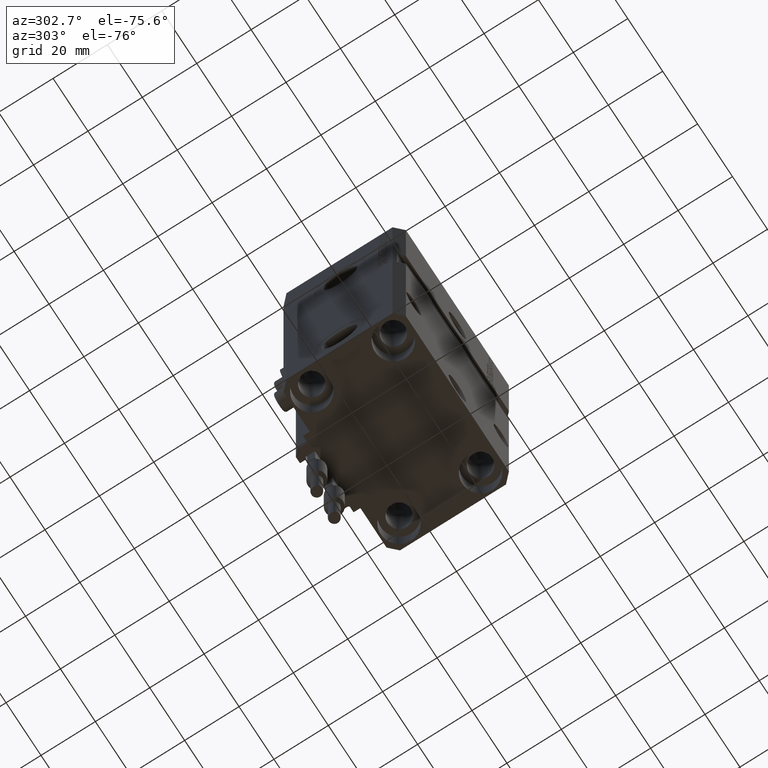
[diagram: clean part render]
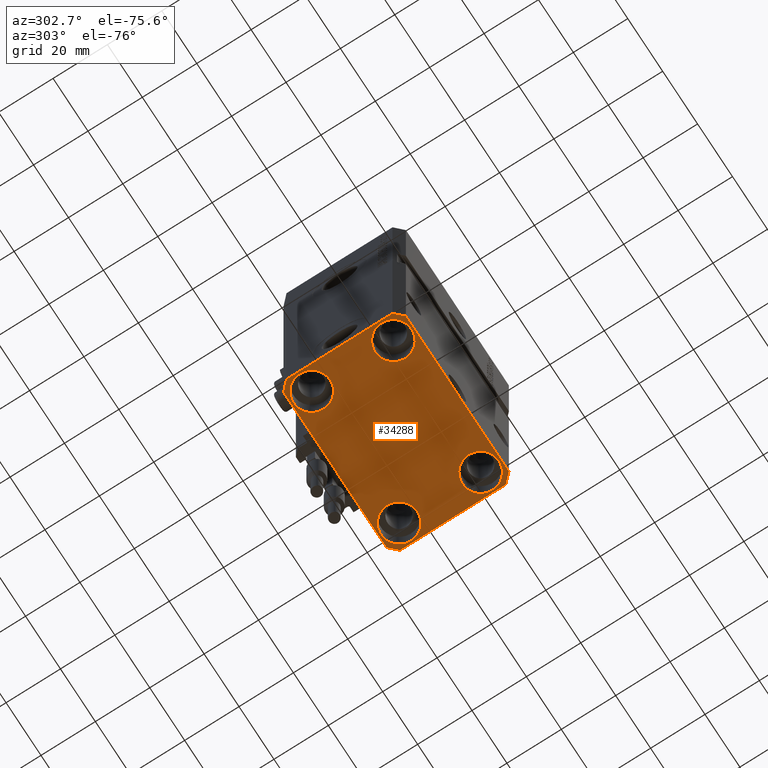
[diagram: same view with one face highlighted and labeled with its STEP entity id]
A machine part, auxiliary view. The second image highlights one B-rep face of the part: STEP entity #34288.
In plain terms, the highlighted planar face has unit normal (0, 0, 1).
Its self-contained STEP definition (entity closure, byte-faithful):
#32 = CARTESIAN_POINT ( 'NONE',  ( 24.99999999999999645, 15.00000000000000888, -107.0000000000000000 ) ) ;
#191 = VERTEX_POINT ( 'NONE', #32069 ) ;
#310 = DIRECTION ( 'NONE',  ( -0.000000000000000000, -0.000000000000000000, 1.000000000000000000 ) ) ;
#604 = CARTESIAN_POINT ( 'NONE',  ( 29.49999999999650413, -22.49999999999949196, -107.0000000000000000 ) ) ;
#1061 = DIRECTION ( 'NONE',  ( 0.000000000000000000, -1.000000000000000000, 0.000000000000000000 ) ) ;
#1066 = CARTESIAN_POINT ( 'NONE',  ( -18.24999999997747224, 15.00000000000000000, -107.0000000000000000 ) ) ;
#1244 = CIRCLE ( 'NONE', #2083, 6.749999999977465137 ) ;
#1299 = FACE_BOUND ( 'NONE', #30832, .T. ) ;
#1635 = CARTESIAN_POINT ( 'NONE',  ( -25.00000000000000355, 15.00000000000000000, -107.0000000000000000 ) ) ;
#1815 = DIRECTION ( 'NONE',  ( 0.000000000000000000, 0.000000000000000000, 1.000000000000000000 ) ) ;
#1820 = EDGE_CURVE ( 'NONE', #12566, #26751, #50322, .T. ) ;
#1847 = LINE ( 'NONE', #17880, #5560 ) ;
#2029 = VERTEX_POINT ( 'NONE', #22838 ) ;
#2083 = AXIS2_PLACEMENT_3D ( 'NONE', #46820, #6704, #50514 ) ;
#3018 = AXIS2_PLACEMENT_3D ( 'NONE', #41444, #5760, #21776 ) ;
#3270 = CARTESIAN_POINT ( 'NONE',  ( 32.49999999999651124, -19.49999999999949196, -107.0000000000000000 ) ) ;
#3643 = CIRCLE ( 'NONE', #16186, 6.749999999977465137 ) ;
#3691 = CARTESIAN_POINT ( 'NONE',  ( 32.49999999999702993, 19.49999999999945999, -107.0000000000000000 ) ) ;
#4186 = CARTESIAN_POINT ( 'NONE',  ( 29.49999999999707967, 22.49999999999951328, -107.0000000000000000 ) ) ;
#4580 = EDGE_LOOP ( 'NONE', ( #19465, #47858, #41402, #41036, #38727, #18479, #20033, #10321 ) ) ;
#4661 = CIRCLE ( 'NONE', #3018, 6.750000000041541881 ) ;
#5006 = DIRECTION ( 'NONE',  ( -0.000000000000000000, -0.000000000000000000, 1.000000000000000000 ) ) ;
#5560 = VECTOR ( 'NONE', #1061, 1000.000000000000000 ) ;
#5760 = DIRECTION ( 'NONE',  ( -0.000000000000000000, -0.000000000000000000, 1.000000000000000000 ) ) ;
#5864 = CARTESIAN_POINT ( 'NONE',  ( -32.49999999999650413, 19.49999999999949907, -107.0000000000000000 ) ) ;
#6010 = ORIENTED_EDGE ( 'NONE', *, *, #40362, .T. ) ;
#6704 = DIRECTION ( 'NONE',  ( -0.000000000000000000, -0.000000000000000000, 1.000000000000000000 ) ) ;
#7234 = VERTEX_POINT ( 'NONE', #11788 ) ;
#7460 = DIRECTION ( 'NONE',  ( 1.334402673828349134E-14, 1.000000000000000000, 0.000000000000000000 ) ) ;
#7964 = CIRCLE ( 'NONE', #37292, 6.750000000041541881 ) ;
#8098 = AXIS2_PLACEMENT_3D ( 'NONE', #44627, #310, #12117 ) ;
#8734 = DIRECTION ( 'NONE',  ( 0.7071067811865483499, 0.7071067811865466846, 0.000000000000000000 ) ) ;
#9169 = FACE_BOUND ( 'NONE', #26980, .T. ) ;
#9777 = DIRECTION ( 'NONE',  ( -0.000000000000000000, -0.000000000000000000, 1.000000000000000000 ) ) ;
#10321 = ORIENTED_EDGE ( 'NONE', *, *, #39813, .F. ) ;
#10545 = AXIS2_PLACEMENT_3D ( 'NONE', #25172, #1815, #49296 ) ;
#11058 = DIRECTION ( 'NONE',  ( -0.000000000000000000, -0.000000000000000000, 1.000000000000000000 ) ) ;
#11730 = DIRECTION ( 'NONE',  ( 1.000000000000000000, 0.000000000000000000, 0.000000000000000000 ) ) ;
#11786 = DIRECTION ( 'NONE',  ( -0.7071067811865474617, -0.7071067811865474617, 0.000000000000000000 ) ) ;
#11788 = CARTESIAN_POINT ( 'NONE',  ( 31.74999999997746869, -15.00000000000000000, -107.0000000000000000 ) ) ;
#11983 = CARTESIAN_POINT ( 'NONE',  ( 29.49999999999707967, 22.49999999999951328, -107.0000000000000000 ) ) ;
#12117 = DIRECTION ( 'NONE',  ( 1.000000000000000000, 0.000000000000000000, 0.000000000000000000 ) ) ;
#12566 = VERTEX_POINT ( 'NONE', #50849 ) ;
#12975 = VERTEX_POINT ( 'NONE', #43423 ) ;
#13620 = FACE_OUTER_BOUND ( 'NONE', #4580, .T. ) ;
#14134 = EDGE_CURVE ( 'NONE', #32474, #15887, #7964, .T. ) ;
#14921 = EDGE_CURVE ( 'NONE', #42387, #2029, #37327, .T. ) ;
#15742 = LINE ( 'NONE', #31720, #22357 ) ;
#15887 = VERTEX_POINT ( 'NONE', #34272 ) ;
#15931 = CARTESIAN_POINT ( 'NONE',  ( -25.00000000000000355, 15.00000000000000000, -107.0000000000000000 ) ) ;
#16001 = VECTOR ( 'NONE', #8734, 1000.000000000000000 ) ;
#16186 = AXIS2_PLACEMENT_3D ( 'NONE', #27572, #11058, #19986 ) ;
#16199 = DIRECTION ( 'NONE',  ( 1.000000000000000000, 1.176083712526788232E-16, 0.000000000000000000 ) ) ;
#16866 = LINE ( 'NONE', #20295, #42410 ) ;
#17527 = EDGE_CURVE ( 'NONE', #7234, #12975, #1244, .T. ) ;
#17880 = CARTESIAN_POINT ( 'NONE',  ( -32.49999999999650413, 19.49999999999949907, -107.0000000000000000 ) ) ;
#18178 = AXIS2_PLACEMENT_3D ( 'NONE', #1635, #9777, #21855 ) ;
#18479 = ORIENTED_EDGE ( 'NONE', *, *, #35173, .F. ) ;
#19132 = LINE ( 'NONE', #39575, #23101 ) ;
#19465 = ORIENTED_EDGE ( 'NONE', *, *, #20929, .F. ) ;
#19521 = CARTESIAN_POINT ( 'NONE',  ( 32.49999999999651124, -19.49999999999949196, -107.0000000000000000 ) ) ;
#19986 = DIRECTION ( 'NONE',  ( 1.000000000000000000, 0.000000000000000000, 0.000000000000000000 ) ) ;
#20033 = ORIENTED_EDGE ( 'NONE', *, *, #38901, .F. ) ;
#20295 = CARTESIAN_POINT ( 'NONE',  ( -32.49999999999650413, -19.49999999999949907, -107.0000000000000000 ) ) ;
#20611 = VERTEX_POINT ( 'NONE', #4186 ) ;
#20929 = EDGE_CURVE ( 'NONE', #20611, #29322, #27728, .T. ) ;
#21776 = DIRECTION ( 'NONE',  ( 1.000000000000000000, 0.000000000000000000, 0.000000000000000000 ) ) ;
#21855 = DIRECTION ( 'NONE',  ( 1.000000000000000000, 0.000000000000000000, 0.000000000000000000 ) ) ;
#22357 = VECTOR ( 'NONE', #11786, 1000.000000000000114 ) ;
#22358 = VERTEX_POINT ( 'NONE', #19521 ) ;
#22838 = CARTESIAN_POINT ( 'NONE',  ( -31.75000000002253842, 15.00000000000000000, -107.0000000000000000 ) ) ;
#23101 = VECTOR ( 'NONE', #16199, 1000.000000000000000 ) ;
#23432 = DIRECTION ( 'NONE',  ( 1.000000000000000000, 0.000000000000000000, 0.000000000000000000 ) ) ;
#23629 = ORIENTED_EDGE ( 'NONE', *, *, #34325, .T. ) ;
#24809 = EDGE_CURVE ( 'NONE', #33611, #22358, #40481, .T. ) ;
#25172 = CARTESIAN_POINT ( 'NONE',  ( 0.000000000000000000, 0.000000000000000000, -107.0000000000000000 ) ) ;
#26070 = VERTEX_POINT ( 'NONE', #31320 ) ;
#26751 = VERTEX_POINT ( 'NONE', #37672 ) ;
#26980 = EDGE_LOOP ( 'NONE', ( #28192, #38575 ) ) ;
#27041 = CARTESIAN_POINT ( 'NONE',  ( -31.75000000004154899, -15.00000000000000000, -107.0000000000000000 ) ) ;
#27572 = CARTESIAN_POINT ( 'NONE',  ( 25.00000000000000355, -15.00000000000000000, -107.0000000000000000 ) ) ;
#27689 = AXIS2_PLACEMENT_3D ( 'NONE', #32, #5006, #37010 ) ;
#27728 = LINE ( 'NONE', #11983, #33237 ) ;
#28192 = ORIENTED_EDGE ( 'NONE', *, *, #36606, .T. ) ;
#29238 = EDGE_CURVE ( 'NONE', #12975, #7234, #3643, .T. ) ;
#29322 = VERTEX_POINT ( 'NONE', #29369 ) ;
#29369 = CARTESIAN_POINT ( 'NONE',  ( -29.49999999999650413, 22.49999999999949907, -107.0000000000000000 ) ) ;
#29612 = PLANE ( 'NONE',  #10545 ) ;
#30572 = EDGE_LOOP ( 'NONE', ( #35968, #23629 ) ) ;
#30593 = VECTOR ( 'NONE', #51427, 1000.000000000000000 ) ;
#30708 = CIRCLE ( 'NONE', #8098, 6.749999999958452790 ) ;
#30832 = EDGE_LOOP ( 'NONE', ( #6010, #35789 ) ) ;
#31124 = VERTEX_POINT ( 'NONE', #5864 ) ;
#31273 = CARTESIAN_POINT ( 'NONE',  ( -25.00000000000000355, -15.00000000000000000, -107.0000000000000000 ) ) ;
#31320 = CARTESIAN_POINT ( 'NONE',  ( -32.49999999999650413, -19.49999999999949907, -107.0000000000000000 ) ) ;
#31720 = CARTESIAN_POINT ( 'NONE',  ( -29.49999999999650413, 22.49999999999949907, -107.0000000000000000 ) ) ;
#32069 = CARTESIAN_POINT ( 'NONE',  ( -29.49999999999650413, -22.49999999999949907, -107.0000000000000000 ) ) ;
#32455 = ORIENTED_EDGE ( 'NONE', *, *, #17527, .T. ) ;
#32474 = VERTEX_POINT ( 'NONE', #27041 ) ;
#33036 = FACE_BOUND ( 'NONE', #34771, .T. ) ;
#33091 = VERTEX_POINT ( 'NONE', #48834 ) ;
#33237 = VECTOR ( 'NONE', #40590, 1000.000000000000000 ) ;
#33251 = EDGE_CURVE ( 'NONE', #33091, #20611, #47726, .T. ) ;
#33611 = VERTEX_POINT ( 'NONE', #39069 ) ;
#33624 = EDGE_CURVE ( 'NONE', #191, #33611, #19132, .T. ) ;
#34272 = CARTESIAN_POINT ( 'NONE',  ( -18.24999999995845812, -15.00000000000000000, -107.0000000000000000 ) ) ;
#34288 = ADVANCED_FACE ( 'NONE', ( #45102, #33036, #1299, #9169, #13620 ), #29612, .F. ) ;
#34325 = EDGE_CURVE ( 'NONE', #15887, #32474, #4661, .T. ) ;
#34771 = EDGE_LOOP ( 'NONE', ( #44450, #32455 ) ) ;
#35173 = EDGE_CURVE ( 'NONE', #26070, #191, #16866, .T. ) ;
#35789 = ORIENTED_EDGE ( 'NONE', *, *, #1820, .T. ) ;
#35968 = ORIENTED_EDGE ( 'NONE', *, *, #14134, .T. ) ;
#36278 = DIRECTION ( 'NONE',  ( 0.7071067811865474617, -0.7071067811865474617, 0.000000000000000000 ) ) ;
#36444 = CIRCLE ( 'NONE', #18178, 6.750000000022533087 ) ;
#36606 = EDGE_CURVE ( 'NONE', #2029, #42387, #36444, .T. ) ;
#37010 = DIRECTION ( 'NONE',  ( 1.000000000000000000, 0.000000000000000000, 0.000000000000000000 ) ) ;
#37292 = AXIS2_PLACEMENT_3D ( 'NONE', #31273, #47266, #23432 ) ;
#37327 = CIRCLE ( 'NONE', #46532, 6.750000000022533087 ) ;
#37672 = CARTESIAN_POINT ( 'NONE',  ( 18.25000000004154543, 15.00000000000000888, -107.0000000000000000 ) ) ;
#38575 = ORIENTED_EDGE ( 'NONE', *, *, #14921, .T. ) ;
#38727 = ORIENTED_EDGE ( 'NONE', *, *, #33624, .F. ) ;
#38901 = EDGE_CURVE ( 'NONE', #31124, #26070, #1847, .T. ) ;
#39069 = CARTESIAN_POINT ( 'NONE',  ( 29.49999999999650413, -22.49999999999949196, -107.0000000000000000 ) ) ;
#39575 = CARTESIAN_POINT ( 'NONE',  ( -29.49999999999650413, -22.49999999999949907, -107.0000000000000000 ) ) ;
#39813 = EDGE_CURVE ( 'NONE', #29322, #31124, #15742, .T. ) ;
#40362 = EDGE_CURVE ( 'NONE', #26751, #12566, #30708, .T. ) ;
#40481 = LINE ( 'NONE', #604, #16001 ) ;
#40590 = DIRECTION ( 'NONE',  ( -1.000000000000000000, -2.352167425053553784E-16, 0.000000000000000000 ) ) ;
#41036 = ORIENTED_EDGE ( 'NONE', *, *, #24809, .F. ) ;
#41402 = ORIENTED_EDGE ( 'NONE', *, *, #43633, .F. ) ;
#41444 = CARTESIAN_POINT ( 'NONE',  ( -25.00000000000000355, -15.00000000000000000, -107.0000000000000000 ) ) ;
#42387 = VERTEX_POINT ( 'NONE', #1066 ) ;
#42410 = VECTOR ( 'NONE', #36278, 1000.000000000000114 ) ;
#43399 = LINE ( 'NONE', #3270, #50110 ) ;
#43423 = CARTESIAN_POINT ( 'NONE',  ( 18.25000000002253842, -15.00000000000000000, -107.0000000000000000 ) ) ;
#43633 = EDGE_CURVE ( 'NONE', #22358, #33091, #43399, .T. ) ;
#44450 = ORIENTED_EDGE ( 'NONE', *, *, #29238, .T. ) ;
#44627 = CARTESIAN_POINT ( 'NONE',  ( 24.99999999999999645, 15.00000000000000888, -107.0000000000000000 ) ) ;
#45102 = FACE_BOUND ( 'NONE', #30572, .T. ) ;
#46532 = AXIS2_PLACEMENT_3D ( 'NONE', #15931, #51611, #11730 ) ;
#46820 = CARTESIAN_POINT ( 'NONE',  ( 25.00000000000000355, -15.00000000000000000, -107.0000000000000000 ) ) ;
#47266 = DIRECTION ( 'NONE',  ( -0.000000000000000000, -0.000000000000000000, 1.000000000000000000 ) ) ;
#47726 = LINE ( 'NONE', #3691, #30593 ) ;
#47858 = ORIENTED_EDGE ( 'NONE', *, *, #33251, .F. ) ;
#48834 = CARTESIAN_POINT ( 'NONE',  ( 32.49999999999702993, 19.49999999999945999, -107.0000000000000000 ) ) ;
#49296 = DIRECTION ( 'NONE',  ( 1.000000000000000000, 0.000000000000000000, -0.000000000000000000 ) ) ;
#50110 = VECTOR ( 'NONE', #7460, 1000.000000000000000 ) ;
#50322 = CIRCLE ( 'NONE', #27689, 6.749999999958452790 ) ;
#50514 = DIRECTION ( 'NONE',  ( 1.000000000000000000, 0.000000000000000000, 0.000000000000000000 ) ) ;
#50849 = CARTESIAN_POINT ( 'NONE',  ( 31.74999999995845101, 15.00000000000000888, -107.0000000000000000 ) ) ;
#51427 = DIRECTION ( 'NONE',  ( -0.7071067811865352493, 0.7071067811865597852, 0.000000000000000000 ) ) ;
#51611 = DIRECTION ( 'NONE',  ( -0.000000000000000000, -0.000000000000000000, 1.000000000000000000 ) ) ;